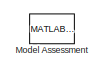
[diagram: root canvas - part 1/2, top right region]
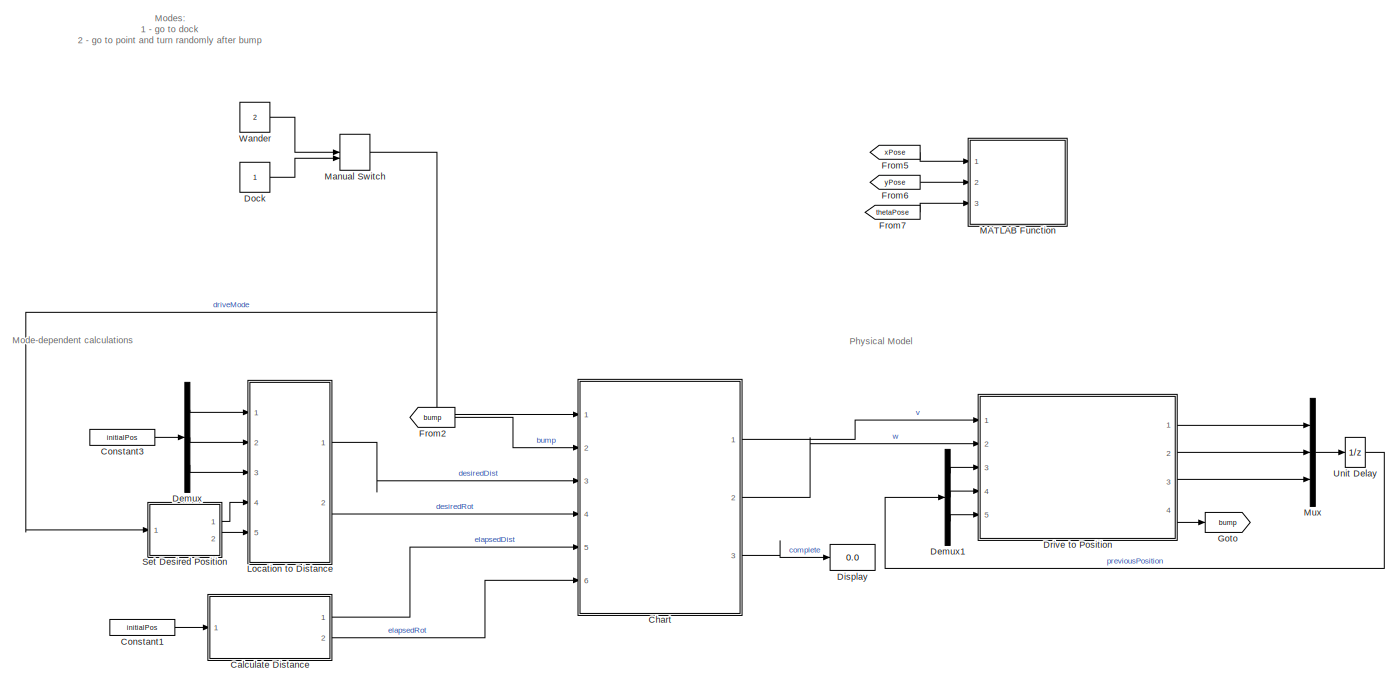
[diagram: root canvas - part 2/2, full width, bottom band]
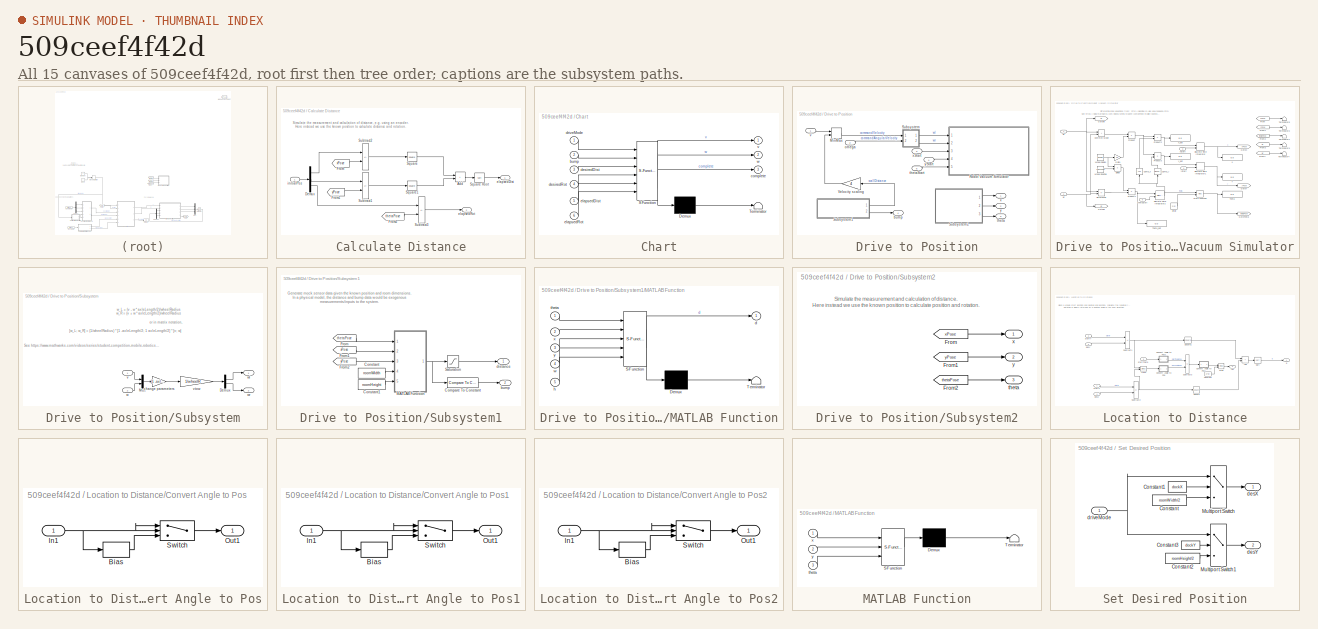
[diagram: thumbnail index - all 15 canvases of the model, root first then tree order]
MODEL slx_509ceef4f42d
KIND model
CONFIG AbsTol = auto
CONFIG EnableMultiTasking = off
CONFIG FixedStep = auto
CONFIG InitFcn = setupVacuumSimTrace;
CONFIG MaxStep = 0.1
CONFIG MinStep = auto
CONFIG RelTol = 1e-3
CONFIG SampleTimeConstraint = Unconstrained
CONFIG SolverName = VariableStepAuto
CONFIG StartFcn = learning.simulink.modelCallbacks.startFunction(gcs)
CONFIG StartTime = 0.0
CONFIG StopFcn = learning.simulink.modelCallbacks.stopFunction(gcs)
CONFIG StopTime = 300
WORKSPACE source: mxarray member
WORKSPACE courseObject: object (value not decoded)
BLOCK [SubSystem] Calculate Distance
  Ports = [1, 2]
  RequestExecContextInheritance = off
BLOCK [Sum] Calculate Distance/Add
  IconShape = rectangular
  Ports = [2, 1]
BLOCK [Demux] Calculate Distance/Demux
  Outputs = 3
  Ports = [1, 3]
BLOCK [From] Calculate Distance/From
  GotoTag = xPose
  TagVisibility = global
BLOCK [From] Calculate Distance/From1
  GotoTag = yPose
  TagVisibility = global
BLOCK [From] Calculate Distance/From2
  GotoTag = thetaPose
  TagVisibility = global
BLOCK [Math] Calculate Distance/Square
  Operator = square
  Ports = [1, 1]
  SignedPower = on
BLOCK [Sqrt] Calculate Distance/Square Root
BLOCK [Math] Calculate Distance/Square1
  Operator = square
  Ports = [1, 1]
  SignedPower = on
BLOCK [Sum] Calculate Distance/Subtract1
  IconShape = rectangular
  Inputs = -+
  Ports = [2, 1]
BLOCK [Sum] Calculate Distance/Subtract2
  IconShape = rectangular
  Inputs = -+
  Ports = [2, 1]
BLOCK [Sum] Calculate Distance/Subtract3
  IconShape = rectangular
  Inputs = -+
  Ports = [2, 1]
BLOCK [Outport] Calculate Distance/elapsedDist
  VectorParamsAs1DForOutWhenUnconnected = off
BLOCK [Outport] Calculate Distance/elapsedRot
  Port = 2
  VectorParamsAs1DForOutWhenUnconnected = off
BLOCK [Inport] Calculate Distance/initialPos
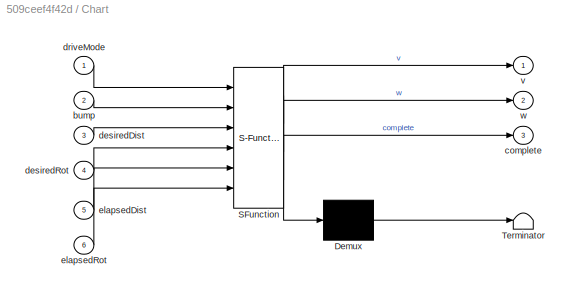
BLOCK [SubSystem] Chart
  ErrorFcn = Stateflow.Translate.translate
  PermitHierarchicalResolution = ExplicitOnly
  Ports = [6, 3]
  RequestExecContextInheritance = off
  SFBlockType = Chart
  TreatAsAtomicUnit = on
BLOCK [Demux] Chart/ Demux 
  Outputs = 1
  Ports = [1, 1]
BLOCK [S-Function] Chart/ SFunction 
  EnableBusSupport = on
  FunctionName = sf_sfun
  PortCounts = [6 4]
  Ports = [6, 4]
  SFcnIsStateOwnerBlock = off
  SFunctionDeploymentMode = off
  Tag = Stateflow S-Function 3
BLOCK [Terminator] Chart/ Terminator 
BLOCK [Inport] Chart/bump
  Port = 2
BLOCK [Outport] Chart/complete
  Port = 3
BLOCK [Inport] Chart/desiredDist
  Port = 3
BLOCK [Inport] Chart/desiredRot
  Port = 4
BLOCK [Inport] Chart/driveMode
BLOCK [Inport] Chart/elapsedDist
  Port = 5
BLOCK [Inport] Chart/elapsedRot
  Port = 6
BLOCK [Outport] Chart/v
BLOCK [Outport] Chart/w
  Port = 2
BLOCK [Constant] Constant1
  Value = initialPos
BLOCK [Constant] Constant3
  Value = initialPos
BLOCK [Demux] Demux
  Outputs = 3
  Ports = [1, 3]
BLOCK [Demux] Demux1
  Outputs = 3
  Ports = [1, 3]
BLOCK [Display] Display
  Decimation = 1
  Ports = [1]
BLOCK [Constant] Dock
BLOCK [SubSystem] Drive to Position
  Ports = [5, 4]
  RequestExecContextInheritance = off
BLOCK [MinMax] Drive to Position/MinMax
  Inputs = 2
  Ports = [2, 1]
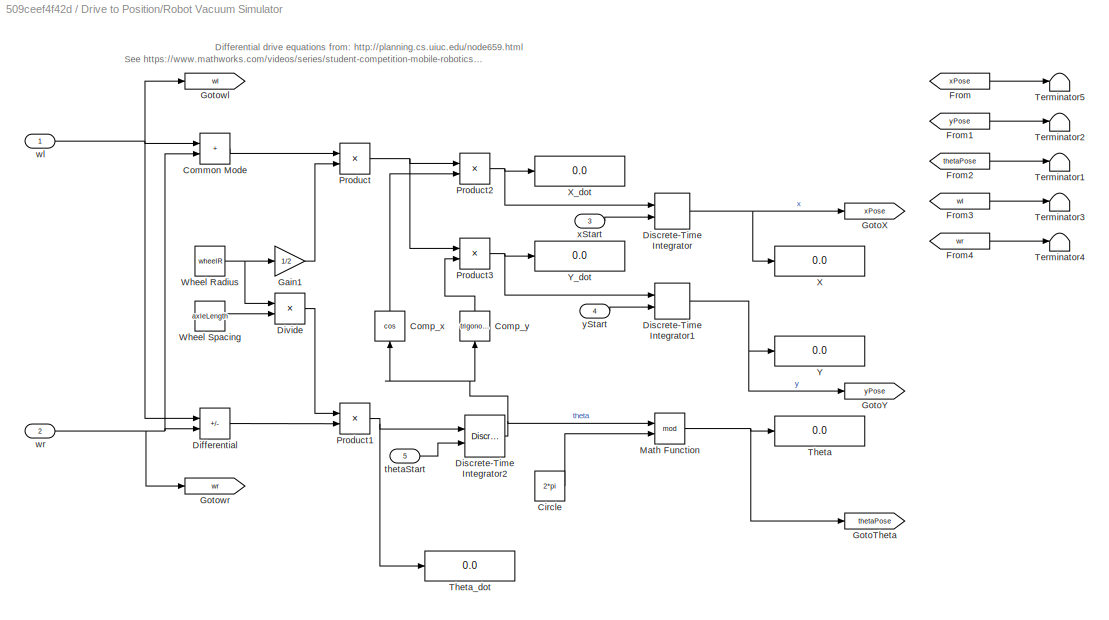
BLOCK [SubSystem] Drive to Position/Robot Vacuum Simulator
  Ports = [5]
  RequestExecContextInheritance = off
BLOCK [Constant] Drive to Position/Robot Vacuum Simulator/Circle
  Value = 2*pi
BLOCK [Sum] Drive to Position/Robot Vacuum Simulator/Common Mode
  IconShape = rectangular
  Ports = [2, 1]
BLOCK [Trigonometry] Drive to Position/Robot Vacuum Simulator/Comp_x
  NameLocation = right
  Operator = cos
  Ports = [1, 1]
BLOCK [Trigonometry] Drive to Position/Robot Vacuum Simulator/Comp_y
  NameLocation = right
  Ports = [1, 1]
BLOCK [Sum] Drive to Position/Robot Vacuum Simulator/Differential
  IconShape = rectangular
  Inputs = -+
  Ports = [2, 1]
BLOCK [DiscreteIntegrator] Drive to Position/Robot Vacuum Simulator/Discrete-Time Integrator
  ICPrevOutput = DiscIntNeverNeededParam
  ICPrevScaledInput = DiscIntNeverNeededParam
  InitialConditionSetting = Auto
  InitialConditionSource = external
  Ports = [2, 1]
  SampleTime = -1
BLOCK [DiscreteIntegrator] Drive to Position/Robot Vacuum Simulator/Discrete-Time Integrator1
  ICPrevOutput = DiscIntNeverNeededParam
  ICPrevScaledInput = DiscIntNeverNeededParam
  InitialConditionSetting = Auto
  InitialConditionSource = external
  Ports = [2, 1]
  SampleTime = -1
BLOCK [DiscreteIntegrator] Drive to Position/Robot Vacuum Simulator/Discrete-Time Integrator2
  ICPrevOutput = DiscIntNeverNeededParam
  ICPrevScaledInput = DiscIntNeverNeededParam
  InitialConditionSetting = Auto
  InitialConditionSource = external
  Ports = [2, 1]
  SampleTime = -1
BLOCK [Product] Drive to Position/Robot Vacuum Simulator/Divide
  Inputs = */
  Ports = [2, 1]
BLOCK [From] Drive to Position/Robot Vacuum Simulator/From
  GotoTag = xPose
  TagVisibility = global
BLOCK [From] Drive to Position/Robot Vacuum Simulator/From1
  GotoTag = yPose
  TagVisibility = global
BLOCK [From] Drive to Position/Robot Vacuum Simulator/From2
  GotoTag = thetaPose
  TagVisibility = global
BLOCK [From] Drive to Position/Robot Vacuum Simulator/From3
  GotoTag = wl
  TagVisibility = global
BLOCK [From] Drive to Position/Robot Vacuum Simulator/From4
  GotoTag = wr
  TagVisibility = global
BLOCK [Gain] Drive to Position/Robot Vacuum Simulator/Gain1
  Gain = 1/2
BLOCK [Goto] Drive to Position/Robot Vacuum Simulator/GotoTheta
  GotoTag = thetaPose
  TagVisibility = global
BLOCK [Goto] Drive to Position/Robot Vacuum Simulator/GotoX
  GotoTag = xPose
  TagVisibility = global
BLOCK [Goto] Drive to Position/Robot Vacuum Simulator/GotoY
  GotoTag = yPose
  TagVisibility = global
BLOCK [Goto] Drive to Position/Robot Vacuum Simulator/Gotowl
  GotoTag = wl
  TagVisibility = global
BLOCK [Goto] Drive to Position/Robot Vacuum Simulator/Gotowr
  GotoTag = wr
  TagVisibility = global
BLOCK [Math] Drive to Position/Robot Vacuum Simulator/Math Function
  Operator = mod
  Ports = [2, 1]
  SignedPower = on
BLOCK [Product] Drive to Position/Robot Vacuum Simulator/Product
  Ports = [2, 1]
  RndMeth = Zero
BLOCK [Product] Drive to Position/Robot Vacuum Simulator/Product1
  Ports = [2, 1]
  RndMeth = Zero
BLOCK [Product] Drive to Position/Robot Vacuum Simulator/Product2
  Ports = [2, 1]
  RndMeth = Zero
BLOCK [Product] Drive to Position/Robot Vacuum Simulator/Product3
  Ports = [2, 1]
  RndMeth = Zero
BLOCK [Terminator] Drive to Position/Robot Vacuum Simulator/Terminator1
BLOCK [Terminator] Drive to Position/Robot Vacuum Simulator/Terminator2
BLOCK [Terminator] Drive to Position/Robot Vacuum Simulator/Terminator3
BLOCK [Terminator] Drive to Position/Robot Vacuum Simulator/Terminator4
BLOCK [Terminator] Drive to Position/Robot Vacuum Simulator/Terminator5
BLOCK [Display] Drive to Position/Robot Vacuum Simulator/Theta
  Decimation = 1
  Ports = [1]
BLOCK [Display] Drive to Position/Robot Vacuum Simulator/Theta_dot
  Decimation = 1
  Ports = [1]
BLOCK [Constant] Drive to Position/Robot Vacuum Simulator/Wheel Radius
  Value = wheelR
BLOCK [Constant] Drive to Position/Robot Vacuum Simulator/Wheel Spacing
  Value = axleLength
BLOCK [Display] Drive to Position/Robot Vacuum Simulator/X
  Decimation = 1
  Ports = [1]
BLOCK [Display] Drive to Position/Robot Vacuum Simulator/X_dot
  Decimation = 1
  Ports = [1]
BLOCK [Display] Drive to Position/Robot Vacuum Simulator/Y
  Decimation = 1
  Ports = [1]
BLOCK [Display] Drive to Position/Robot Vacuum Simulator/Y_dot
  Decimation = 1
  Ports = [1]
BLOCK [Inport] Drive to Position/Robot Vacuum Simulator/thetaStart
  Port = 5
BLOCK [Inport] Drive to Position/Robot Vacuum Simulator/wl
BLOCK [Inport] Drive to Position/Robot Vacuum Simulator/wr
  Port = 2
BLOCK [Inport] Drive to Position/Robot Vacuum Simulator/xStart
  Port = 3
BLOCK [Inport] Drive to Position/Robot Vacuum Simulator/yStart
  Port = 4
BLOCK [SubSystem] Drive to Position/Subsystem
  Ports = [2, 2]
  RequestExecContextInheritance = off
BLOCK [Demux] Drive to Position/Subsystem/Demux
  Outputs = 2
  Ports = [1, 2]
BLOCK [Mux] Drive to Position/Subsystem/Mux
  DisplayOption = bar
  Inputs = 2
  Ports = [2, 1]
BLOCK [Gain] Drive to Position/Subsystem/change parameters
  Gain = [1 -axleLength/2; 1 axleLength/2]
  Multiplication = Matrix(K*u)
BLOCK [Inport] Drive to Position/Subsystem/v
BLOCK [Gain] Drive to Position/Subsystem/vtow
  Gain = 1/wheelR
  Multiplication = Matrix(K*u)
BLOCK [Inport] Drive to Position/Subsystem/w
  Port = 2
BLOCK [Outport] Drive to Position/Subsystem/wl
  VectorParamsAs1DForOutWhenUnconnected = off
BLOCK [Outport] Drive to Position/Subsystem/wr
  Port = 2
  VectorParamsAs1DForOutWhenUnconnected = off
BLOCK [SubSystem] Drive to Position/Subsystem1
  Ports = [0, 2]
  RequestExecContextInheritance = off
BLOCK [Reference] Drive to Position/Subsystem1/Compare To Constant  REF=simulink/Logic and Bit
Operations/Compare
To Constant
  Ports = [1, 1]
  SourceBlock = simulink/Logic and Bit\nOperations/Compare\nTo Constant
  SourceProductBaseCode = SL
  SourceType = Compare To Constant
BLOCK [Constant] Drive to Position/Subsystem1/Constant
  Value = roomWidth
BLOCK [Constant] Drive to Position/Subsystem1/Constant1
  Value = roomHeight
BLOCK [From] Drive to Position/Subsystem1/From
  GotoTag = thetaPose
  TagVisibility = global
BLOCK [From] Drive to Position/Subsystem1/From1
  GotoTag = xPose
  TagVisibility = global
BLOCK [From] Drive to Position/Subsystem1/From2
  GotoTag = yPose
  TagVisibility = global
BLOCK [SubSystem] Drive to Position/Subsystem1/MATLAB Function
  ErrorFcn = Stateflow.Translate.translate
  PermitHierarchicalResolution = ExplicitOnly
  Ports = [5, 1]
  RequestExecContextInheritance = off
  SFBlockType = MATLAB Function
  TreatAsAtomicUnit = on
BLOCK [Demux] Drive to Position/Subsystem1/MATLAB Function/ Demux 
  Outputs = 1
  Ports = [1, 1]
BLOCK [S-Function] Drive to Position/Subsystem1/MATLAB Function/ SFunction 
  EnableBusSupport = on
  FunctionName = sf_sfun
  PortCounts = [5 2]
  Ports = [5, 2]
  SFcnIsStateOwnerBlock = off
  SFunctionDeploymentMode = off
  Tag = Stateflow S-Function 5
BLOCK [Terminator] Drive to Position/Subsystem1/MATLAB Function/ Terminator 
BLOCK [Outport] Drive to Position/Subsystem1/MATLAB Function/d
  VectorParamsAs1DForOutWhenUnconnected = off
BLOCK [Inport] Drive to Position/Subsystem1/MATLAB Function/h
  Port = 5
BLOCK [Inport] Drive to Position/Subsystem1/MATLAB Function/theta
BLOCK [Inport] Drive to Position/Subsystem1/MATLAB Function/w
  Port = 4
BLOCK [Inport] Drive to Position/Subsystem1/MATLAB Function/x
  Port = 2
BLOCK [Inport] Drive to Position/Subsystem1/MATLAB Function/y
  Port = 3
BLOCK [Saturate] Drive to Position/Subsystem1/Saturation
  LowerLimit = minDist
  UpperLimit = maxDist
BLOCK [Outport] Drive to Position/Subsystem1/bump
  Port = 2
  VectorParamsAs1DForOutWhenUnconnected = off
BLOCK [Outport] Drive to Position/Subsystem1/distance
  VectorParamsAs1DForOutWhenUnconnected = off
BLOCK [SubSystem] Drive to Position/Subsystem2
  Ports = [0, 3]
  RequestExecContextInheritance = off
BLOCK [From] Drive to Position/Subsystem2/From
  GotoTag = xPose
  TagVisibility = global
BLOCK [From] Drive to Position/Subsystem2/From1
  GotoTag = yPose
  TagVisibility = global
BLOCK [From] Drive to Position/Subsystem2/From2
  GotoTag = thetaPose
  TagVisibility = global
BLOCK [Outport] Drive to Position/Subsystem2/theta
  Port = 3
  VectorParamsAs1DForOutWhenUnconnected = off
BLOCK [Outport] Drive to Position/Subsystem2/x
  VectorParamsAs1DForOutWhenUnconnected = off
BLOCK [Outport] Drive to Position/Subsystem2/y
  Port = 2
  VectorParamsAs1DForOutWhenUnconnected = off
BLOCK [Gain] Drive to Position/Velocity scaling
  Gain = 4
BLOCK [Outport] Drive to Position/bump
  Port = 4
  VectorParamsAs1DForOutWhenUnconnected = off
BLOCK [Inport] Drive to Position/omega
  Port = 2
BLOCK [Outport] Drive to Position/theta
  Port = 3
  VectorParamsAs1DForOutWhenUnconnected = off
BLOCK [Inport] Drive to Position/thetaStart
  Port = 5
BLOCK [Inport] Drive to Position/v
BLOCK [Outport] Drive to Position/x
  VectorParamsAs1DForOutWhenUnconnected = off
BLOCK [Inport] Drive to Position/xStart
  Port = 3
BLOCK [Outport] Drive to Position/y
  Port = 2
  VectorParamsAs1DForOutWhenUnconnected = off
BLOCK [Inport] Drive to Position/yStart
  Port = 4
BLOCK [From] From2
  GotoTag = bump
BLOCK [From] From5
  GotoTag = xPose
  TagVisibility = global
BLOCK [From] From6
  GotoTag = yPose
  TagVisibility = global
BLOCK [From] From7
  GotoTag = thetaPose
  TagVisibility = global
BLOCK [Goto] Goto
  GotoTag = bump
BLOCK [SubSystem] Location to Distance
  Ports = [5, 2]
  RequestExecContextInheritance = off
BLOCK [Sum] Location to Distance/Add
  IconShape = rectangular
  Ports = [2, 1]
BLOCK [Trigonometry] Location to Distance/Atan2
  Operator = atan2
  Ports = [2, 1]
BLOCK [Constant] Location to Distance/Constant
  Value = 2*pi
BLOCK [SubSystem] Location to Distance/Convert Angle to Pos
  Ports = [1, 1]
  RequestExecContextInheritance = off
BLOCK [Bias] Location to Distance/Convert Angle to Pos/Bias
  Bias = 2*pi
  SaturateOnIntegerOverflow = off
BLOCK [Inport] Location to Distance/Convert Angle to Pos/In1
BLOCK [Outport] Location to Distance/Convert Angle to Pos/Out1
  VectorParamsAs1DForOutWhenUnconnected = off
BLOCK [Switch] Location to Distance/Convert Angle to Pos/Switch
  Criteria = u2 > Threshold
  InputSameDT = off
  SaturateOnIntegerOverflow = off
BLOCK [SubSystem] Location to Distance/Convert Angle to Pos1
  Ports = [1, 1]
  RequestExecContextInheritance = off
BLOCK [Bias] Location to Distance/Convert Angle to Pos1/Bias
  Bias = 2*pi
  SaturateOnIntegerOverflow = off
BLOCK [Inport] Location to Distance/Convert Angle to Pos1/In1
BLOCK [Outport] Location to Distance/Convert Angle to Pos1/Out1
  VectorParamsAs1DForOutWhenUnconnected = off
BLOCK [Switch] Location to Distance/Convert Angle to Pos1/Switch
  Criteria = u2 > Threshold
  InputSameDT = off
  SaturateOnIntegerOverflow = off
BLOCK [SubSystem] Location to Distance/Convert Angle to Pos2
  Ports = [1, 1]
  RequestExecContextInheritance = off
BLOCK [Bias] Location to Distance/Convert Angle to Pos2/Bias
  Bias = 2*pi
  SaturateOnIntegerOverflow = off
BLOCK [Inport] Location to Distance/Convert Angle to Pos2/In1
BLOCK [Outport] Location to Distance/Convert Angle to Pos2/Out1
  VectorParamsAs1DForOutWhenUnconnected = off
BLOCK [Switch] Location to Distance/Convert Angle to Pos2/Switch
  Criteria = u2 > Threshold
  InputSameDT = off
  SaturateOnIntegerOverflow = off
BLOCK [Math] Location to Distance/Mod
  Operator = mod
  Ports = [2, 1]
BLOCK [Sqrt] Location to Distance/Sqrt
BLOCK [Math] Location to Distance/Square
  Operator = square
  Ports = [1, 1]
  SignedPower = on
BLOCK [Math] Location to Distance/Square1
  Operator = square
  Ports = [1, 1]
  SignedPower = on
BLOCK [Sum] Location to Distance/Subtract1
  IconShape = rectangular
  Inputs = -+
  Ports = [2, 1]
BLOCK [Sum] Location to Distance/Subtract2
  IconShape = rectangular
  Inputs = -+
  Ports = [2, 1]
BLOCK [Sum] Location to Distance/Subtract3
  IconShape = rectangular
  Inputs = -+
  Ports = [2, 1]
BLOCK [Outport] Location to Distance/d
  VectorParamsAs1DForOutWhenUnconnected = off
BLOCK [Inport] Location to Distance/desX
  Port = 4
BLOCK [Inport] Location to Distance/desY
  Port = 5
BLOCK [Outport] Location to Distance/rot
  Port = 2
  VectorParamsAs1DForOutWhenUnconnected = off
BLOCK [Inport] Location to Distance/startTheta
  Port = 3
BLOCK [Inport] Location to Distance/startX
BLOCK [Inport] Location to Distance/startY
  Port = 2
BLOCK [SubSystem] MATLAB Function
  ErrorFcn = Stateflow.Translate.translate
  PermitHierarchicalResolution = ExplicitOnly
  Ports = [3]
  RequestExecContextInheritance = off
  SFBlockType = MATLAB Function
  TreatAsAtomicUnit = on
BLOCK [Demux] MATLAB Function/ Demux 
  Outputs = 1
  Ports = [1, 1]
BLOCK [S-Function] MATLAB Function/ SFunction 
  EnableBusSupport = on
  FunctionName = sf_sfun
  PortCounts = [3 1]
  Ports = [3, 1]
  SFcnIsStateOwnerBlock = off
  SFunctionDeploymentMode = off
  Tag = Stateflow S-Function 6
BLOCK [Terminator] MATLAB Function/ Terminator 
BLOCK [Inport] MATLAB Function/theta
  Port = 3
BLOCK [Inport] MATLAB Function/x
BLOCK [Inport] MATLAB Function/y
  Port = 2
BLOCK [ManualSwitch] Manual Switch
  AttributesFormatString = (Double-click to switch modes)
BLOCK [Reference] Model Assessment  REF=signalChecks/MATLAB Model Check
  AttributesFormatString = No input required\nfor this task
  Ports = []
  SourceBlock = signalChecks/MATLAB Model Check
  SourceType = MATLAB Model Check
BLOCK [Mux] Mux
  DisplayOption = bar
  Inputs = 3
  Ports = [3, 1]
BLOCK [SubSystem] Set Desired Position
  Ports = [1, 2]
  RequestExecContextInheritance = off
BLOCK [Constant] Set Desired Position/Constant
  Value = roomWidth/2
BLOCK [Constant] Set Desired Position/Constant1
  Value = dockX
BLOCK [Constant] Set Desired Position/Constant2
  Value = roomHeight/2
BLOCK [Constant] Set Desired Position/Constant3
  Value = dockY
BLOCK [MultiPortSwitch] Set Desired Position/Multiport Switch
  InputSameDT = off
  Inputs = 2
  Ports = [3, 1]
  SaturateOnIntegerOverflow = off
BLOCK [MultiPortSwitch] Set Desired Position/Multiport Switch1
  InputSameDT = off
  Inputs = 2
  Ports = [3, 1]
  SaturateOnIntegerOverflow = off
BLOCK [Outport] Set Desired Position/desX
  VectorParamsAs1DForOutWhenUnconnected = off
BLOCK [Outport] Set Desired Position/desY
  Port = 2
  VectorParamsAs1DForOutWhenUnconnected = off
BLOCK [Inport] Set Desired Position/driveMode
BLOCK [UnitDelay] Unit Delay
  HasFrameUpgradeWarning = on
  InitialCondition = initialPos
  SampleTime = -1
BLOCK [Constant] Wander
  Value = 2
ANNOTATION (root): Mode-dependent calculations
ANNOTATION (root): Modes: 1 - go to dock 2 - go to point and turn randomly after bump
ANNOTATION (root): Physical Model
ANNOTATION Calculate Distance: Simulate the measurement and calculation of distance, e.g. using an encoder. Here instead we use the known position to calculate distance and rotation.
ANNOTATION Drive to Position/Robot Vacuum Simulator: Differential drive equations from: http://planning.cs.uiuc.edu/node659.html
ANNOTATION Drive to Position/Robot Vacuum Simulator: See https://www.mathworks.com/videos/series/student-competition-mobile-robotics-training.html for more information
ANNOTATION Drive to Position/Subsystem: See https://www.mathworks.com/videos/series/student-competition-mobile-robotics-training.html for more information
ANNOTATION Drive to Position/Subsystem: [w_L; w_R] = (1/wheelRadius) * [1 -axleLength/2; 1 axleLength/2] * [v; w]
ANNOTATION Drive to Position/Subsystem: or in matrix notation,
ANNOTATION Drive to Position/Subsystem: w_L = (v - w * axleLength/2)/wheelRadius w_R = (v + w * axleLength/2)/wheelRadius
ANNOTATION Drive to Position/Subsystem1: Generate mock sensor data given the known position and room dimensions. In a physical model, the distance and bump data would be exogenous measurements/inputs to the system.
ANNOTATION Drive to Position/Subsystem2: Simulate the measurement and calculation of distance. Here instead we use the known position to calculate position and rotation.
ANNOTATION Location to Distance: Given a known start location and desired end location, calculate the required rotation and travel distance to reach the destination by dead reckoning. Rotation is always returned as a positive angle in the CCW direction.
LINE Calculate Distance/Add:1 -> Calculate Distance/Square Root:1
LINE Calculate Distance/Demux:1 -> Calculate Distance/Subtract2:1
LINE Calculate Distance/Demux:2 -> Calculate Distance/Subtract1:1
LINE Calculate Distance/Demux:3 -> Calculate Distance/Subtract3:1
LINE Calculate Distance/From1:1 -> Calculate Distance/Subtract1:2
LINE Calculate Distance/From2:1 -> Calculate Distance/Subtract3:2
LINE Calculate Distance/From:1 -> Calculate Distance/Subtract2:2
LINE Calculate Distance/Square Root:1 -> Calculate Distance/elapsedDist:1
LINE Calculate Distance/Square1:1 -> Calculate Distance/Add:2
LINE Calculate Distance/Square:1 -> Calculate Distance/Add:1
LINE Calculate Distance/Subtract1:1 -> Calculate Distance/Square1:1
LINE Calculate Distance/Subtract2:1 -> Calculate Distance/Square:1
LINE Calculate Distance/Subtract3:1 -> Calculate Distance/elapsedRot:1
LINE Calculate Distance/initialPos:1 -> Calculate Distance/Demux:1
LINE Calculate Distance:1 -> Chart:5
LINE Calculate Distance:2 -> Chart:6
LINE Chart:1 -> Drive to Position:1
LINE Chart:2 -> Drive to Position:2
LINE Chart:3 -> Display:1
LINE Constant1:1 -> Calculate Distance:1
LINE Constant3:1 -> Demux:1
LINE Demux1:1 -> Drive to Position:3
LINE Demux1:2 -> Drive to Position:4
LINE Demux1:3 -> Drive to Position:5
LINE Demux:1 -> Location to Distance:1
LINE Demux:2 -> Location to Distance:2
LINE Demux:3 -> Location to Distance:3
LINE Dock:1 -> Manual Switch:2
LINE Drive to Position/MinMax:1 -> Drive to Position/Subsystem:1
LINE Drive to Position/Robot Vacuum Simulator/Circle:1 -> Drive to Position/Robot Vacuum Simulator/Math Function:2
LINE Drive to Position/Robot Vacuum Simulator/Common Mode:1 -> Drive to Position/Robot Vacuum Simulator/Product:1
LINE Drive to Position/Robot Vacuum Simulator/Comp_x:1 -> Drive to Position/Robot Vacuum Simulator/Product2:2
LINE Drive to Position/Robot Vacuum Simulator/Comp_y:1 -> Drive to Position/Robot Vacuum Simulator/Product3:2
LINE Drive to Position/Robot Vacuum Simulator/Differential:1 -> Drive to Position/Robot Vacuum Simulator/Product1:2
NET Drive to Position/Robot Vacuum Simulator/Discrete-Time Integrator1:1 -> Drive to Position/Robot Vacuum Simulator/GotoY:1, Drive to Position/Robot Vacuum Simulator/Y:1
NET Drive to Position/Robot Vacuum Simulator/Discrete-Time Integrator2:1 -> Drive to Position/Robot Vacuum Simulator/Comp_x:1, Drive to Position/Robot Vacuum Simulator/Comp_y:1, Drive to Position/Robot Vacuum Simulator/Math Function:1
NET Drive to Position/Robot Vacuum Simulator/Discrete-Time Integrator:1 -> Drive to Position/Robot Vacuum Simulator/GotoX:1, Drive to Position/Robot Vacuum Simulator/X:1
LINE Drive to Position/Robot Vacuum Simulator/Divide:1 -> Drive to Position/Robot Vacuum Simulator/Product1:1
LINE Drive to Position/Robot Vacuum Simulator/From1:1 -> Drive to Position/Robot Vacuum Simulator/Terminator2:1
LINE Drive to Position/Robot Vacuum Simulator/From2:1 -> Drive to Position/Robot Vacuum Simulator/Terminator1:1
LINE Drive to Position/Robot Vacuum Simulator/From3:1 -> Drive to Position/Robot Vacuum Simulator/Terminator3:1
LINE Drive to Position/Robot Vacuum Simulator/From4:1 -> Drive to Position/Robot Vacuum Simulator/Terminator4:1
LINE Drive to Position/Robot Vacuum Simulator/From:1 -> Drive to Position/Robot Vacuum Simulator/Terminator5:1
LINE Drive to Position/Robot Vacuum Simulator/Gain1:1 -> Drive to Position/Robot Vacuum Simulator/Product:2
NET Drive to Position/Robot Vacuum Simulator/Math Function:1 -> Drive to Position/Robot Vacuum Simulator/GotoTheta:1, Drive to Position/Robot Vacuum Simulator/Theta:1
NET Drive to Position/Robot Vacuum Simulator/Product1:1 -> Drive to Position/Robot Vacuum Simulator/Discrete-Time Integrator2:1, Drive to Position/Robot Vacuum Simulator/Theta_dot:1
NET Drive to Position/Robot Vacuum Simulator/Product2:1 -> Drive to Position/Robot Vacuum Simulator/Discrete-Time Integrator:1, Drive to Position/Robot Vacuum Simulator/X_dot:1
NET Drive to Position/Robot Vacuum Simulator/Product3:1 -> Drive to Position/Robot Vacuum Simulator/Discrete-Time Integrator1:1, Drive to Position/Robot Vacuum Simulator/Y_dot:1
NET Drive to Position/Robot Vacuum Simulator/Product:1 -> Drive to Position/Robot Vacuum Simulator/Product2:1, Drive to Position/Robot Vacuum Simulator/Product3:1
NET Drive to Position/Robot Vacuum Simulator/Wheel Radius:1 -> Drive to Position/Robot Vacuum Simulator/Divide:1, Drive to Position/Robot Vacuum Simulator/Gain1:1
LINE Drive to Position/Robot Vacuum Simulator/Wheel Spacing:1 -> Drive to Position/Robot Vacuum Simulator/Divide:2
LINE Drive to Position/Robot Vacuum Simulator/thetaStart:1 -> Drive to Position/Robot Vacuum Simulator/Discrete-Time Integrator2:2
NET Drive to Position/Robot Vacuum Simulator/wl:1 -> Drive to Position/Robot Vacuum Simulator/Common Mode:1, Drive to Position/Robot Vacuum Simulator/Differential:1, Drive to Position/Robot Vacuum Simulator/Gotowl:1
NET Drive to Position/Robot Vacuum Simulator/wr:1 -> Drive to Position/Robot Vacuum Simulator/Common Mode:2, Drive to Position/Robot Vacuum Simulator/Differential:2, Drive to Position/Robot Vacuum Simulator/Gotowr:1
LINE Drive to Position/Robot Vacuum Simulator/xStart:1 -> Drive to Position/Robot Vacuum Simulator/Discrete-Time Integrator:2
LINE Drive to Position/Robot Vacuum Simulator/yStart:1 -> Drive to Position/Robot Vacuum Simulator/Discrete-Time Integrator1:2
LINE Drive to Position/Subsystem/Demux:1 -> Drive to Position/Subsystem/wl:1
LINE Drive to Position/Subsystem/Demux:2 -> Drive to Position/Subsystem/wr:1
LINE Drive to Position/Subsystem/Mux:1 -> Drive to Position/Subsystem/change parameters:1
LINE Drive to Position/Subsystem/change parameters:1 -> Drive to Position/Subsystem/vtow:1
LINE Drive to Position/Subsystem/v:1 -> Drive to Position/Subsystem/Mux:1
LINE Drive to Position/Subsystem/vtow:1 -> Drive to Position/Subsystem/Demux:1
LINE Drive to Position/Subsystem/w:1 -> Drive to Position/Subsystem/Mux:2
LINE Drive to Position/Subsystem1/Compare To Constant:1 -> Drive to Position/Subsystem1/bump:1
LINE Drive to Position/Subsystem1/Constant1:1 -> Drive to Position/Subsystem1/MATLAB Function:5
LINE Drive to Position/Subsystem1/Constant:1 -> Drive to Position/Subsystem1/MATLAB Function:4
LINE Drive to Position/Subsystem1/From1:1 -> Drive to Position/Subsystem1/MATLAB Function:2
LINE Drive to Position/Subsystem1/From2:1 -> Drive to Position/Subsystem1/MATLAB Function:3
LINE Drive to Position/Subsystem1/From:1 -> Drive to Position/Subsystem1/MATLAB Function:1
NET Drive to Position/Subsystem1/MATLAB Function:1 -> Drive to Position/Subsystem1/Compare To Constant:1, Drive to Position/Subsystem1/Saturation:1
LINE Drive to Position/Subsystem1/Saturation:1 -> Drive to Position/Subsystem1/distance:1
LINE Drive to Position/Subsystem1:1 -> Drive to Position/Velocity scaling:1
LINE Drive to Position/Subsystem1:2 -> Drive to Position/bump:1
LINE Drive to Position/Subsystem2/From1:1 -> Drive to Position/Subsystem2/y:1
LINE Drive to Position/Subsystem2/From2:1 -> Drive to Position/Subsystem2/theta:1
LINE Drive to Position/Subsystem2/From:1 -> Drive to Position/Subsystem2/x:1
LINE Drive to Position/Subsystem2:1 -> Drive to Position/x:1
LINE Drive to Position/Subsystem2:2 -> Drive to Position/y:1
LINE Drive to Position/Subsystem2:3 -> Drive to Position/theta:1
LINE Drive to Position/Subsystem:1 -> Drive to Position/Robot Vacuum Simulator:1
LINE Drive to Position/Subsystem:2 -> Drive to Position/Robot Vacuum Simulator:2
LINE Drive to Position/Velocity scaling:1 -> Drive to Position/MinMax:2
LINE Drive to Position/omega:1 -> Drive to Position/Subsystem:2
LINE Drive to Position/thetaStart:1 -> Drive to Position/Robot Vacuum Simulator:5
LINE Drive to Position/v:1 -> Drive to Position/MinMax:1
LINE Drive to Position/xStart:1 -> Drive to Position/Robot Vacuum Simulator:3
LINE Drive to Position/yStart:1 -> Drive to Position/Robot Vacuum Simulator:4
LINE Drive to Position:1 -> Mux:1
LINE Drive to Position:2 -> Mux:2
LINE Drive to Position:3 -> Mux:3
LINE Drive to Position:4 -> Goto:1
LINE From2:1 -> Chart:2
LINE From5:1 -> MATLAB Function:1
LINE From6:1 -> MATLAB Function:2
LINE From7:1 -> MATLAB Function:3
LINE Location to Distance/Add:1 -> Location to Distance/Sqrt:1
LINE Location to Distance/Atan2:1 -> Location to Distance/Convert Angle to Pos:1
LINE Location to Distance/Constant:1 -> Location to Distance/Mod:2
LINE Location to Distance/Convert Angle to Pos/Bias:1 -> Location to Distance/Convert Angle to Pos/Switch:3
NET Location to Distance/Convert Angle to Pos/In1:1 -> Location to Distance/Convert Angle to Pos/Bias:1, Location to Distance/Convert Angle to Pos/Switch:1, Location to Distance/Convert Angle to Pos/Switch:2
LINE Location to Distance/Convert Angle to Pos/Switch:1 -> Location to Distance/Convert Angle to Pos/Out1:1
LINE Location to Distance/Convert Angle to Pos1/Bias:1 -> Location to Distance/Convert Angle to Pos1/Switch:3
NET Location to Distance/Convert Angle to Pos1/In1:1 -> Location to Distance/Convert Angle to Pos1/Bias:1, Location to Distance/Convert Angle to Pos1/Switch:1, Location to Distance/Convert Angle to Pos1/Switch:2
LINE Location to Distance/Convert Angle to Pos1/Switch:1 -> Location to Distance/Convert Angle to Pos1/Out1:1
LINE Location to Distance/Convert Angle to Pos1:1 -> Location to Distance/Mod:1
LINE Location to Distance/Convert Angle to Pos2/Bias:1 -> Location to Distance/Convert Angle to Pos2/Switch:3
NET Location to Distance/Convert Angle to Pos2/In1:1 -> Location to Distance/Convert Angle to Pos2/Bias:1, Location to Distance/Convert Angle to Pos2/Switch:1, Location to Distance/Convert Angle to Pos2/Switch:2
LINE Location to Distance/Convert Angle to Pos2/Switch:1 -> Location to Distance/Convert Angle to Pos2/Out1:1
LINE Location to Distance/Convert Angle to Pos2:1 -> Location to Distance/Subtract3:1
LINE Location to Distance/Convert Angle to Pos:1 -> Location to Distance/Subtract3:2
LINE Location to Distance/Mod:1 -> Location to Distance/rot:1
LINE Location to Distance/Sqrt:1 -> Location to Distance/d:1
LINE Location to Distance/Square1:1 -> Location to Distance/Add:1
LINE Location to Distance/Square:1 -> Location to Distance/Add:2
NET Location to Distance/Subtract1:1 -> Location to Distance/Atan2:1, Location to Distance/Square1:1
NET Location to Distance/Subtract2:1 -> Location to Distance/Atan2:2, Location to Distance/Square:1
LINE Location to Distance/Subtract3:1 -> Location to Distance/Convert Angle to Pos1:1
LINE Location to Distance/desX:1 -> Location to Distance/Subtract2:2
LINE Location to Distance/desY:1 -> Location to Distance/Subtract1:2
LINE Location to Distance/startTheta:1 -> Location to Distance/Convert Angle to Pos2:1
LINE Location to Distance/startX:1 -> Location to Distance/Subtract2:1
LINE Location to Distance/startY:1 -> Location to Distance/Subtract1:1
LINE Location to Distance:1 -> Chart:3
LINE Location to Distance:2 -> Chart:4
NET Manual Switch:1 -> Chart:1, Set Desired Position:1
LINE Mux:1 -> Unit Delay:1
LINE Set Desired Position/Constant1:1 -> Set Desired Position/Multiport Switch:2
LINE Set Desired Position/Constant2:1 -> Set Desired Position/Multiport Switch1:3
LINE Set Desired Position/Constant3:1 -> Set Desired Position/Multiport Switch1:2
LINE Set Desired Position/Constant:1 -> Set Desired Position/Multiport Switch:3
LINE Set Desired Position/Multiport Switch1:1 -> Set Desired Position/desY:1
LINE Set Desired Position/Multiport Switch:1 -> Set Desired Position/desX:1
NET Set Desired Position/driveMode:1 -> Set Desired Position/Multiport Switch1:1, Set Desired Position/Multiport Switch:1
LINE Set Desired Position:1 -> Location to Distance:4
LINE Set Desired Position:2 -> Location to Distance:5
LINE Unit Delay:1 -> Demux1:1
LINE Wander:1 -> Manual Switch:1
note: NET lines group one-source signal fan-out (src -> all destinations, sorted); 1:1 wires keep LINE
CHART Chart states=8 transitions=10
  STATE_LABEL 'DriveToLocation\nentry:\npositionReached = 0;'
  STATE_LABEL 'PureRotate\nentry:\nv=0;\nw=1;'
  STATE_LABEL 'PureTranslate\nentry:\nv=3;\nw=0;'
  STATE_LABEL 'Stop\nentry:\nv=0;\nw=0;\npositionReached=1;'
  STATE_LABEL '[mod(elapsedRot,2*pi) >= desiredRot]'
  STATE_LABEL '[elapsedDist >= desiredDist]'
  STATE_LABEL 'PureRotate\nentry:\nv=0;\nw=1;'
  STATE_LABEL 'PureTranslate\nentry:\nv=3;\nw=0;'
  STATE_LABEL 'Stop\nentry:\nv=0;\nw=0;\npositionReached=1;'
  STATE_LABEL 'TaskComplete\nentry:\ncomplete =1;'
  STATE_LABEL 'RandomDrive\nentry:\nbumpCount = 0;'
  STATE_LABEL 'FindWall\nentry:\nv=3;\nw=0;'
  STATE_LABEL 'RotateRandom\nentry:\nv=0;\nw=1;\ntRotate = rand(1)*1.5+2.5;'
  STATE_LABEL '[bump == 1]{bumpCount = bumpCount +1;}'
  STATE_LABEL 'after(tRotate,sec)'
  STATE_LABEL 'FindWall\nentry:\nv=3;\nw=0;'
  STATE_LABEL 'RotateRandom\nentry:\nv=0;\nw=1;\ntRotate = rand(1)*1.5+2.5;'
CHART Drive to Position/Subsystem1/MATLAB Function states=1 transitions=1
  STATE_LABEL 'eML_blk_kernel()'
  STATE_LABEL 'SCRIPT:\nfunction d = distanceToWall(theta,x,y,w,h)\n\nif theta <= pi/4 % 1\n    d = (w-x)/cos(theta);\nelseif theta <= pi/2 % 2\n    d = (h-y)/sin(theta);\nelseif theta <= 3*pi/4 %3\n    d = (h-y)/cos(theta-pi/2);\nelseif theta <= pi % 4\n    d = x/cos(pi-theta);\nelseif theta <= 5*pi/4 % 5\n    d = x/cos(theta - pi);\nelseif theta <= 3*pi/2 % 6\n    d = y/cos(3*pi/2 - theta);\nelseif theta <= 7*pi/4 % 7\n    d ...<+65ch>'
CHART MATLAB Function states=1 transitions=1
  STATE_LABEL 'eML_blk_kernel()'
  STATE_LABEL "SCRIPT:\nfunction plotRobot(x,y,theta)\n\ncoder.extrinsic('evalin','plot');\n\nlineLength = .2;\n\noH = evalin('base','orientationHandle');\nrH = evalin('base','robotHandle');\ntH = evalin('base','traceHandle');\n\ntraceX = get(tH,'xdata');\ntraceY = get(tH,'ydata');\n\n% Find length orientation line\nxp = [x x+lineLength*cos(theta)];\nyp = [y y+lineLength*sin(theta)];\n\ntraceX = [x traceX];\ntraceY = [y traceY];\n\n...<+134ch>"
CHART  states=0 transitions=0
CHART  states=0 transitions=0
CHART  states=0 transitions=0
